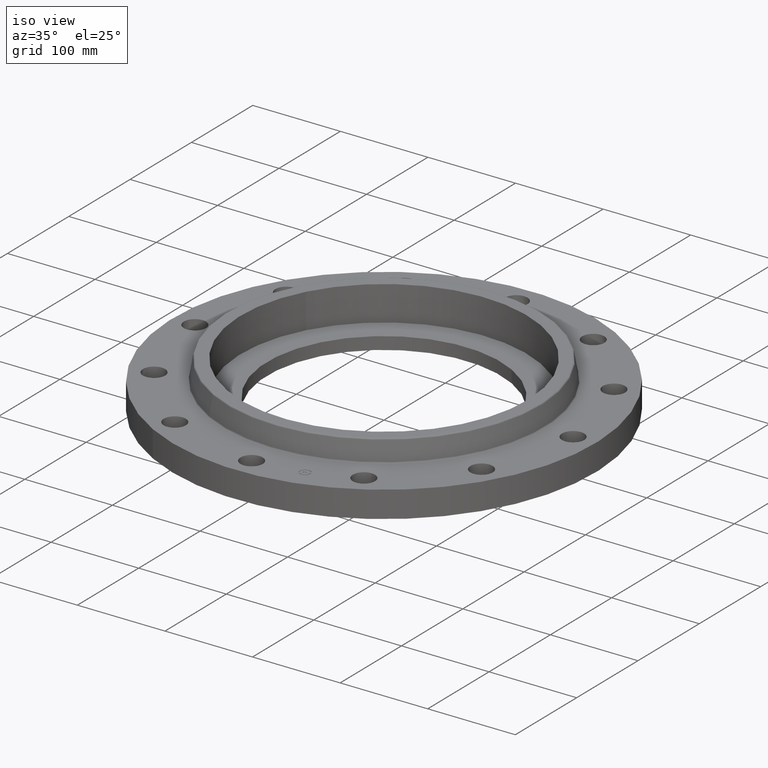
[diagram: clean part render]
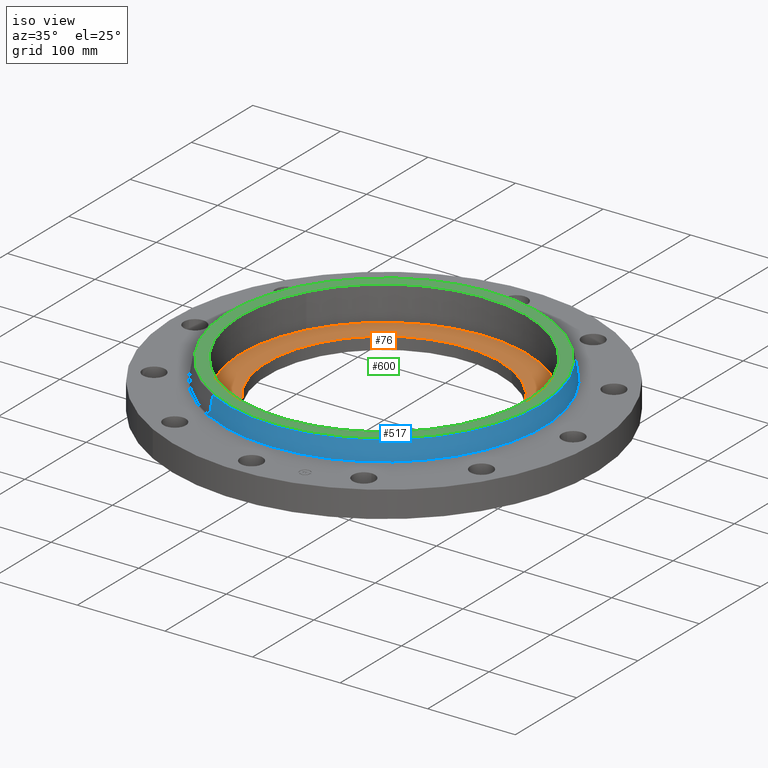
[diagram: same view with three faces highlighted in distinct colors, each labeled with its STEP entity id]
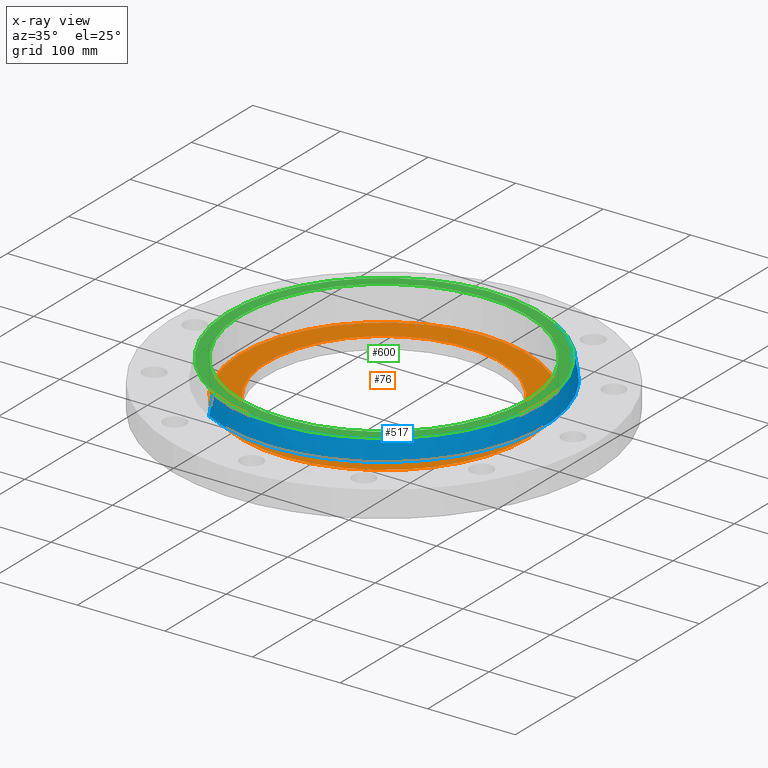
[diagram: x-ray of the same camera — body ghosted, the three highlighted faces saturated]
A machine part, iso view with three faces highlighted in distinct colors.
The next image is the same camera in x-ray (body ghosted, the three faces saturated) — at least one of them is partly hidden behind the body in this view.
Their STEP definitions:

[orange] entity #76 — the highlighted planar face has unit normal (0, 0, -1).
#38=AXIS2_PLACEMENT_3D('Plane Axis2P3D',#35,#36,#37) ;
#42=AXIS2_PLACEMENT_3D('Circle Axis2P3D',#40,#41,$) ;
#51=AXIS2_PLACEMENT_3D('Circle Axis2P3D',#49,#50,$) ;
#60=AXIS2_PLACEMENT_3D('Circle Axis2P3D',#58,#59,$) ;
#69=AXIS2_PLACEMENT_3D('Circle Axis2P3D',#67,#68,$) ;
#35=CARTESIAN_POINT('Axis2P3D Location',(0.,-6.99353086378E-017,0.560000000002)) ;
#40=CARTESIAN_POINT('Axis2P3D Location',(0.,-6.99353086378E-017,0.560000000002)) ;
#44=CARTESIAN_POINT('Vertex',(-5.6516316986,3.08750046862,0.560000000002)) ;
#46=CARTESIAN_POINT('Vertex',(5.6516316986,-3.08750046862,0.560000000002)) ;
#49=CARTESIAN_POINT('Axis2P3D Location',(0.,-6.99353086378E-017,0.560000000002)) ;
#58=CARTESIAN_POINT('Axis2P3D Location',(0.,-6.99353086378E-017,0.560000000002)) ;
#62=CARTESIAN_POINT('Vertex',(-2.51698407768,-4.60730844994,0.560000000002)) ;
#64=CARTESIAN_POINT('Vertex',(2.51698407768,4.60730844994,0.560000000002)) ;
#67=CARTESIAN_POINT('Axis2P3D Location',(-5.59482469102E-016,-7.69288395016E-016,0.560000000002)) ;
#36=DIRECTION('Axis2P3D Direction',(0.,0.,-0.0393700787402)) ;
#37=DIRECTION('Axis2P3D XDirection',(0.0393700787402,0.,0.)) ;
#41=DIRECTION('Axis2P3D Direction',(0.,0.,-0.0393700787402)) ;
#50=DIRECTION('Axis2P3D Direction',(0.,0.,-0.0393700787402)) ;
#59=DIRECTION('Axis2P3D Direction',(0.,0.,-0.0393700787402)) ;
#68=DIRECTION('Axis2P3D Direction',(0.,0.,-0.0393700787402)) ;
#55=ORIENTED_EDGE('',*,*,#48,.F.) ;
#56=ORIENTED_EDGE('',*,*,#53,.F.) ;
#73=ORIENTED_EDGE('',*,*,#66,.T.) ;
#74=ORIENTED_EDGE('',*,*,#71,.T.) ;
#75=FACE_BOUND('',#72,.T.) ;
#76=ADVANCED_FACE('PartBody',(#57,#75),#39,.F.) ;
#43=CIRCLE('generated circle',#42,6.44000000003) ;
#52=CIRCLE('generated circle',#51,6.44000000003) ;
#61=CIRCLE('generated circle',#60,5.25000000002) ;
#70=CIRCLE('generated circle',#69,5.25000000002) ;
#48=EDGE_CURVE('',#45,#47,#43,.T.) ;
#53=EDGE_CURVE('',#47,#45,#52,.T.) ;
#66=EDGE_CURVE('',#63,#65,#61,.T.) ;
#71=EDGE_CURVE('',#65,#63,#70,.T.) ;
#54=EDGE_LOOP('',(#55,#56)) ;
#72=EDGE_LOOP('',(#73,#74)) ;
#57=FACE_OUTER_BOUND('',#54,.T.) ;
#39=PLANE('',#38) ;
#45=VERTEX_POINT('',#44) ;
#47=VERTEX_POINT('',#46) ;
#63=VERTEX_POINT('',#62) ;
#65=VERTEX_POINT('',#64) ;

[blue] entity #517 — the highlighted conical surface has half-angle 10 deg.
#453=AXIS2_PLACEMENT_3D('Circle Axis2P3D',#451,#452,$) ;
#490=AXIS2_PLACEMENT_3D('Cone Axis2P3D',#487,#488,#489) ;
#501=AXIS2_PLACEMENT_3D('Circle Axis2P3D',#499,#500,$) ;
#448=CARTESIAN_POINT('Vertex',(3.44287825089,6.30214636561,1.23958110934)) ;
#451=CARTESIAN_POINT('Axis2P3D Location',(0.,0.,1.23958110934)) ;
#455=CARTESIAN_POINT('Vertex',(-3.44287825089,-6.30214636561,1.23958110934)) ;
#487=CARTESIAN_POINT('Axis2P3D Location',(0.,0.,2.07041889067)) ;
#492=CARTESIAN_POINT('Line Origine',(3.40776054175,6.23786383021,1.65500000001)) ;
#496=CARTESIAN_POINT('Vertex',(3.37264283261,6.17358129481,2.07041889067)) ;
#499=CARTESIAN_POINT('Axis2P3D Location',(0.,0.,2.07041889067)) ;
#503=CARTESIAN_POINT('Vertex',(-3.37264283261,-6.17358129481,2.07041889067)) ;
#506=CARTESIAN_POINT('Line Origine',(-3.40776054175,-6.23786383021,1.65500000001)) ;
#452=DIRECTION('Axis2P3D Direction',(0.,0.,-0.0393700787402)) ;
#488=DIRECTION('Axis2P3D Direction',(0.,0.,-0.0393700787402)) ;
#489=DIRECTION('Axis2P3D XDirection',(-0.0188750212049,-0.0345504945626,0.)) ;
#493=DIRECTION('Vector Direction',(0.00327761303565,0.00599963041829,-0.03877195878)) ;
#500=DIRECTION('Axis2P3D Direction',(0.,0.,-0.0393700787402)) ;
#507=DIRECTION('Vector Direction',(-0.00327761303565,-0.00599963041829,-0.03877195878)) ;
#494=VECTOR('Line Direction',#493,0.0393700787402) ;
#508=VECTOR('Line Direction',#507,0.0393700787402) ;
#512=ORIENTED_EDGE('',*,*,#457,.F.) ;
#513=ORIENTED_EDGE('',*,*,#498,.T.) ;
#514=ORIENTED_EDGE('',*,*,#505,.T.) ;
#515=ORIENTED_EDGE('',*,*,#510,.F.) ;
#517=ADVANCED_FACE('PartBody',(#516),#491,.T.) ;
#454=CIRCLE('generated circle',#453,7.18125751272) ;
#502=CIRCLE('generated circle',#501,7.03475839528) ;
#491=CONICAL_SURFACE('Cone',#490,7.03475839528,0.174532925199) ;
#457=EDGE_CURVE('',#449,#456,#454,.T.) ;
#498=EDGE_CURVE('',#449,#497,#495,.F.) ;
#505=EDGE_CURVE('',#497,#504,#502,.T.) ;
#510=EDGE_CURVE('',#456,#504,#509,.F.) ;
#511=EDGE_LOOP('',(#512,#513,#514,#515)) ;
#516=FACE_OUTER_BOUND('',#511,.T.) ;
#495=LINE('Line',#492,#494) ;
#509=LINE('Line',#506,#508) ;
#449=VERTEX_POINT('',#448) ;
#456=VERTEX_POINT('',#455) ;
#497=VERTEX_POINT('',#496) ;
#504=VERTEX_POINT('',#503) ;

[green] entity #600 — the highlighted planar face has unit normal (0, 0, -1).
#544=AXIS2_PLACEMENT_3D('Circle Axis2P3D',#542,#543,$) ;
#563=AXIS2_PLACEMENT_3D('Circle Axis2P3D',#561,#562,$) ;
#576=AXIS2_PLACEMENT_3D('Plane Axis2P3D',#573,#574,#575) ;
#584=AXIS2_PLACEMENT_3D('Circle Axis2P3D',#582,#583,$) ;
#593=AXIS2_PLACEMENT_3D('Circle Axis2P3D',#591,#592,$) ;
#539=CARTESIAN_POINT('Vertex',(3.34431431336,6.12172628816,2.12000000001)) ;
#542=CARTESIAN_POINT('Axis2P3D Location',(0.,0.,2.12000000001)) ;
#546=CARTESIAN_POINT('Vertex',(-3.34431431336,-6.12172628816,2.12000000001)) ;
#561=CARTESIAN_POINT('Axis2P3D Location',(0.,0.,2.12000000001)) ;
#573=CARTESIAN_POINT('Axis2P3D Location',(0.,6.9756699301,2.12000000001)) ;
#582=CARTESIAN_POINT('Axis2P3D Location',(-5.59482469102E-016,1.1189649382E-015,2.12000000001)) ;
#586=CARTESIAN_POINT('Vertex',(-5.6516316986,3.08750046862,2.12000000001)) ;
#588=CARTESIAN_POINT('Vertex',(5.6516316986,-3.08750046862,2.12000000001)) ;
#591=CARTESIAN_POINT('Axis2P3D Location',(1.1189649382E-015,0.,2.12000000001)) ;
#543=DIRECTION('Axis2P3D Direction',(0.,0.,-0.0393700787402)) ;
#562=DIRECTION('Axis2P3D Direction',(0.,0.,-0.0393700787402)) ;
#574=DIRECTION('Axis2P3D Direction',(0.,0.,-0.0393700787402)) ;
#575=DIRECTION('Axis2P3D XDirection',(0.0393700787402,0.,0.)) ;
#583=DIRECTION('Axis2P3D Direction',(0.,0.,-0.0393700787402)) ;
#592=DIRECTION('Axis2P3D Direction',(0.,0.,-0.0393700787402)) ;
#579=ORIENTED_EDGE('',*,*,#548,.F.) ;
#580=ORIENTED_EDGE('',*,*,#565,.F.) ;
#597=ORIENTED_EDGE('',*,*,#590,.T.) ;
#598=ORIENTED_EDGE('',*,*,#595,.T.) ;
#599=FACE_BOUND('',#596,.T.) ;
#600=ADVANCED_FACE('PartBody',(#581,#599),#577,.F.) ;
#545=CIRCLE('generated circle',#544,6.9756699301) ;
#564=CIRCLE('generated circle',#563,6.9756699301) ;
#585=CIRCLE('generated circle',#584,6.44000000003) ;
#594=CIRCLE('generated circle',#593,6.44000000003) ;
#548=EDGE_CURVE('',#540,#547,#545,.T.) ;
#565=EDGE_CURVE('',#547,#540,#564,.T.) ;
#590=EDGE_CURVE('',#587,#589,#585,.T.) ;
#595=EDGE_CURVE('',#589,#587,#594,.T.) ;
#578=EDGE_LOOP('',(#579,#580)) ;
#596=EDGE_LOOP('',(#597,#598)) ;
#581=FACE_OUTER_BOUND('',#578,.T.) ;
#577=PLANE('',#576) ;
#540=VERTEX_POINT('',#539) ;
#547=VERTEX_POINT('',#546) ;
#587=VERTEX_POINT('',#586) ;
#589=VERTEX_POINT('',#588) ;